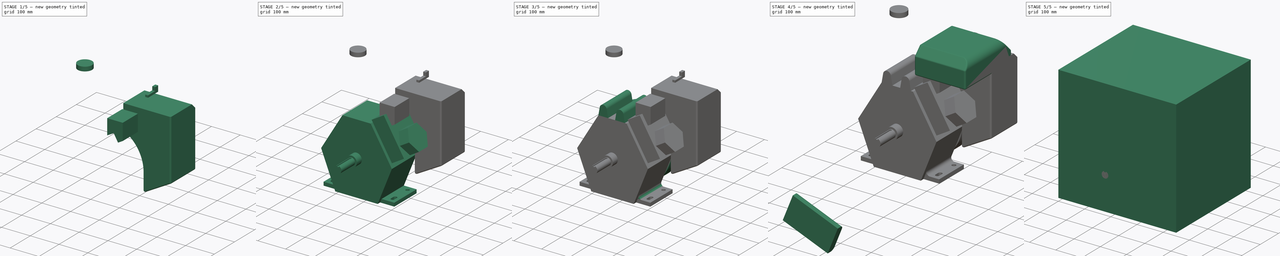
[diagram: build sequence overview — one tinted view per stage of 5, left to right]
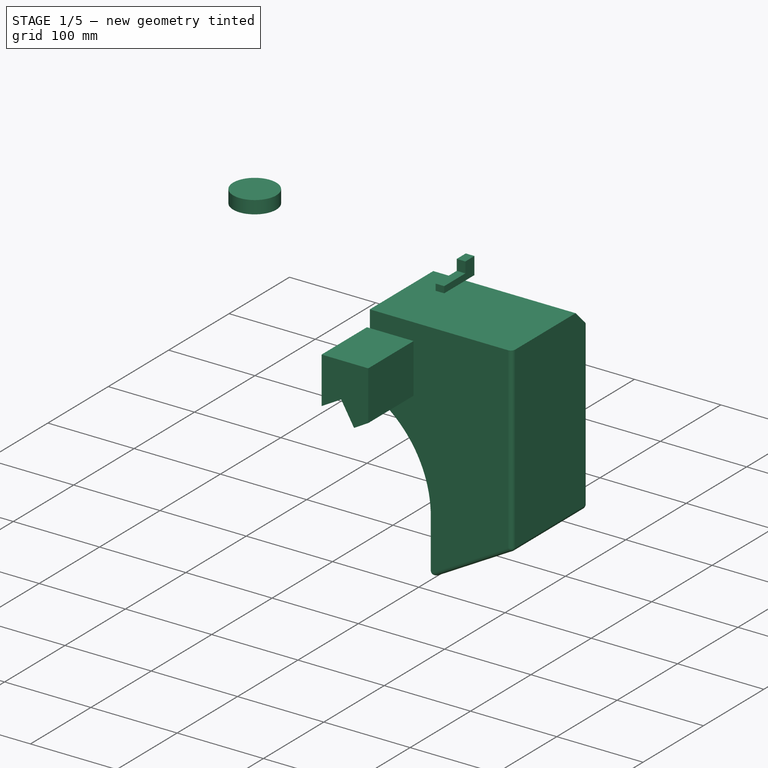
[diagram: stage 1 of 5 — iso view after this stage's code; geometry added in this stage tinted green]
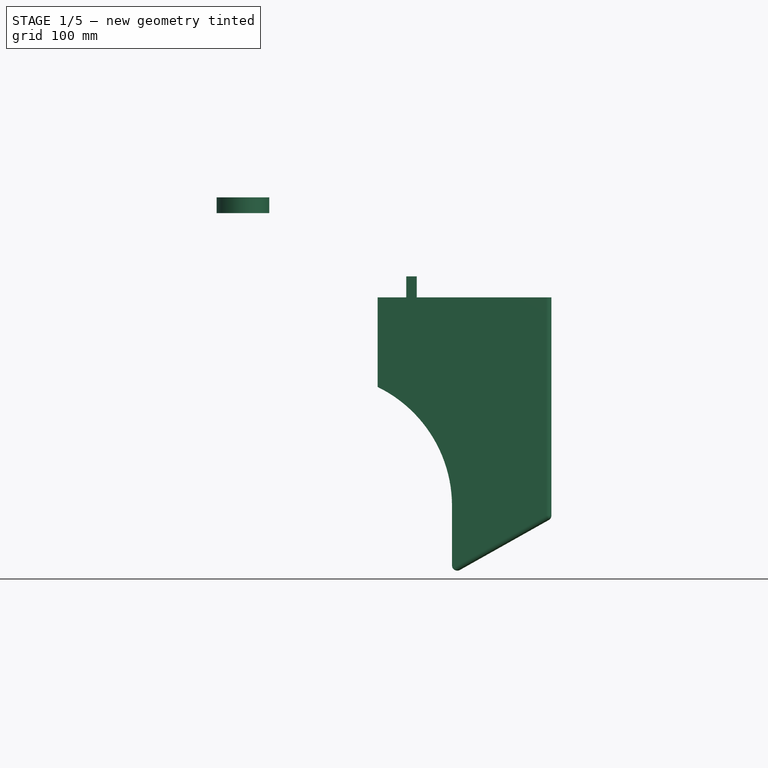
[diagram: stage 1 of 5 — front view after this stage's code; geometry added in this stage tinted green]
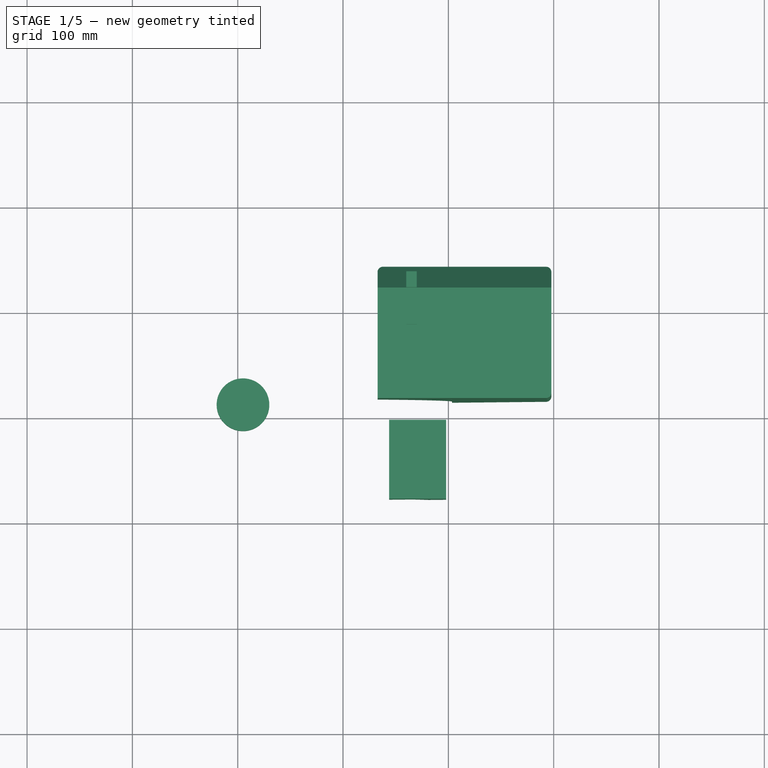
[diagram: stage 1 of 5 — top view after this stage's code; geometry added in this stage tinted green]
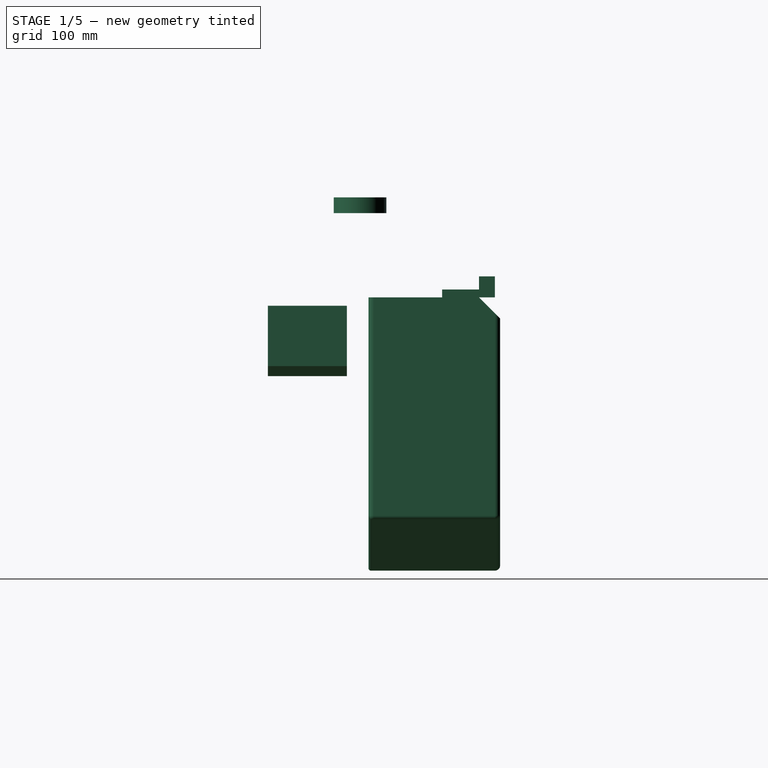
[diagram: stage 1 of 5 — right view after this stage's code; geometry added in this stage tinted green]
FCSTD DOCUMENT  (FreeCAD 0.16R6706 (Git))
Label: xp16hp
License: All rights reserved
LicenseURL: http://en.wikipedia.org/wiki/All_rights_reserved
objects: Sketcher::SketchObject×18, PartDesign::Pad×14, PartDesign::Fillet×8, PartDesign::Chamfer×4, PartDesign::Pocket×3, Part::Box×1, PartDesign::Revolution×1, Part::MultiFuse×1
note: 68 computed .brp shape members not serialized (recipe doc carries the construction recipe); baked Part::Feature solids carry a one-line shape summary decoded from their .brp

FEATURE [Sketcher::SketchObject] Sketch014
  Placement = pos=(0,215,0) rot=(1,0,0;1.5708rad)
  sketch-geometry (6):
    g0: LineSegment StartX=397.8 StartY=325 StartZ=0 EndX=232.8 EndY=325 EndZ=0
    g1: LineSegment StartX=397.8 StartY=325 StartZ=0 EndX=397.8 EndY=115 EndZ=0
    g2: LineSegment StartX=397.8 StartY=115 StartZ=0 EndX=303.474 EndY=62 EndZ=0
    g3: LineSegment StartX=303.474 StartY=62 StartZ=0 EndX=303.474 EndY=127 EndZ=0
    g4: LineSegment StartX=232.8 StartY=325 StartZ=0 EndX=232.8 EndY=240 EndZ=0
    g5: ArcOfCircle CenterX=177.8 CenterY=127 CenterZ=0 NormalX=0 NormalY=0 NormalZ=1 Radius=125.674 StartAngle=6.28319 EndAngle=7.40101
  constraints (19):
    c: Horizontal(g0)
    c: Vertical(g1)
    c: Coincident(g1,g2)
    c: Coincident(g2,g3)
    c: Vertical(g3)
    c: Vertical(g4)
    c: Coincident(g0,g4)
    c: Coincident(g3,g5)
    c: Coincident(g4,g5)
    c: Distance(g1) = 210
    c: Distance(g4) = 85
    c: Tangent(g5,g3)
    c: Coincident(g0,g1)
    c: DistanceX(g-1,g0) = 232.8
    c: DistanceY(g-1,g0) = 325
    c: DistanceX(g5) = 177.8
    c: DistanceY(g5) = 127
    c: Distance(g0) = 165
    c: Distance(g3) = 65
FEATURE [PartDesign::Pad] Pad010  label="Air Filter"
  Length = 125
  Length2 = 100
  Placement = pos=(0,215,0) rot=(1,0,0;1.5708rad)
  Reversed = true
  Sketch = -> Sketch014
  Type = 0
FEATURE [PartDesign::Chamfer] Chamfer003
  Base = -> Pad010 [Edge4]
  Placement = pos=(0,215,0) rot=(1,0,0;1.5708rad)
  Size = 20
FEATURE [PartDesign::Fillet] Fillet007  label="Air Filter with Fillets"
  Base = -> Chamfer003 [Edge7,Edge8,Edge19,Edge18,Edge17,Edge15,Edge6,Edge14,Edge20]
  Placement = pos=(0,215,0) rot=(1,0,0;1.5708rad)
  Radius = 5
FEATURE [Sketcher::SketchObject] Sketch016
  Placement = pos=(0,157,0) rot=(-1,0,0;4.71239rad)
  sketch-geometry (6):
    g0: LineSegment StartX=243.774 StartY=263.019 StartZ=0 EndX=266.447 EndY=276.109 EndZ=0
    g1: LineSegment StartX=266.447 StartY=276.109 StartZ=0 EndX=281.381 EndY=250.244 EndZ=0
    g2: LineSegment StartX=281.381 StartY=250.244 StartZ=0 EndX=297.844 EndY=259.75 EndZ=0
    g3: LineSegment StartX=297.844 StartY=259.75 StartZ=0 EndX=297.844 EndY=317.038 EndZ=0
    g4: LineSegment StartX=297.844 StartY=317.038 StartZ=0 EndX=243.774 EndY=317.038 EndZ=0
    g5: LineSegment StartX=243.774 StartY=317.038 StartZ=0 EndX=243.774 EndY=263.019 EndZ=0
  constraints (18):
    c: Coincident(g0,g1)
    c: Coincident(g1,g2)
    c: Coincident(g2,g3)
    c: Vertical(g3)
    c: Coincident(g3,g4)
    c: Horizontal(g4)
    c: Coincident(g4,g5)
    c: Coincident(g5,g0)
    c: Vertical(g5)
    c: Perpendicular(g0,g1)
    c: Perpendicular(g1,g2)
    c: DistanceX(g0) = 243.774
    c: DistanceY(g0) = 263.019
    c: DistanceX(g1) = 281.381
    c: DistanceY(g1) = 250.244
    c: DistanceX(g3) = 297.844
    c: DistanceY(g3) = 317.038
    c: Angle(g0,g5) = 1.0472
FEATURE [PartDesign::Pad] Pad011  label="Muffler"
  Length = 75
  Length2 = 100
  Midplane = true
  Placement = pos=(0,157,0) rot=(-1,0,0;4.71239rad)
  Sketch = -> Sketch016
  Type = 0
FEATURE [Sketcher::SketchObject] Sketch017
  Placement = pos=(0,0,405) rot=(0,0,1;0rad)
  sketch-geometry (1):
    g0: Circle CenterX=105 CenterY=207 CenterZ=0 NormalX=0 NormalY=0 NormalZ=1 Radius=25
  constraints (3):
    c: DistanceX(g0) = 105
    c: DistanceY(g0) = 207
    c: Radius(g0) = 25
FEATURE [PartDesign::Pad] Pad012  label="Gas Cap"
  Length = 15
  Length2 = 100
  Placement = pos=(0,0,405) rot=(0,0,1;0rad)
  Sketch = -> Sketch017
  Type = 0
FEATURE [Sketcher::SketchObject] Sketch018
  Placement = pos=(265,0,0) rot=(0.57735,0.57735,0.57735;2.0944rad)
  sketch-geometry (6):
    g0: LineSegment StartX=285 StartY=332.5 StartZ=0 EndX=320 EndY=332.5 EndZ=0
    g1: LineSegment StartX=320 StartY=332.5 StartZ=0 EndX=320 EndY=345 EndZ=0
    g2: LineSegment StartX=320 StartY=345 StartZ=0 EndX=335 EndY=345 EndZ=0
    g3: LineSegment StartX=335 StartY=345 StartZ=0 EndX=335 EndY=325 EndZ=0
    g4: LineSegment StartX=335 StartY=325 StartZ=0 EndX=285 EndY=325 EndZ=0
    g5: LineSegment StartX=285 StartY=325 StartZ=0 EndX=285 EndY=332.5 EndZ=0
  constraints (18):
    c: Horizontal(g0)
    c: Coincident(g0,g1)
    c: Coincident(g1,g2)
    c: Horizontal(g2)
    c: Coincident(g2,g3)
    c: Vertical(g3)
    c: Coincident(g3,g4)
    c: Horizontal(g4)
    c: Coincident(g4,g5)
    c: Coincident(g5,g0)
    c: Vertical(g5)
    c: Vertical(g1)
    c: Distance(g2) = 15
    c: Distance(g3) = 20
    c: DistanceX(g3) = 335
    c: DistanceY(g3) = 325
    c: Distance(g4) = 50
    c: Distance(g1) = 12.5
FEATURE [PartDesign::Pad] Pad013  label="Throttle Lever"
  Length = 10
  Length2 = 100
  Midplane = true
  Placement = pos=(265,0,0) rot=(0.57735,0.57735,0.57735;2.0944rad)
  Sketch = -> Sketch018
  Type = 0
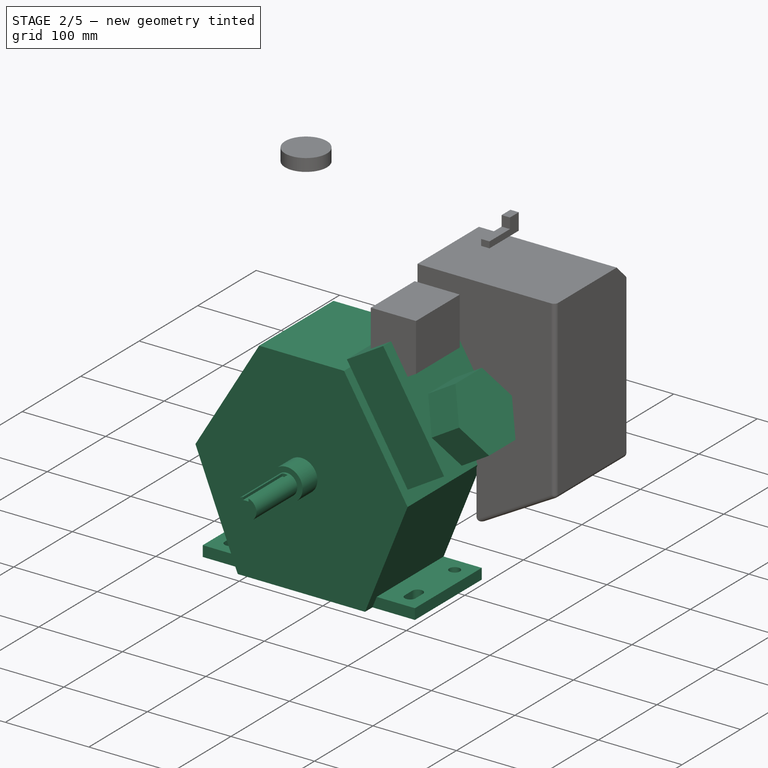
[diagram: stage 2 of 5 — iso view after this stage's code; geometry added in this stage tinted green]
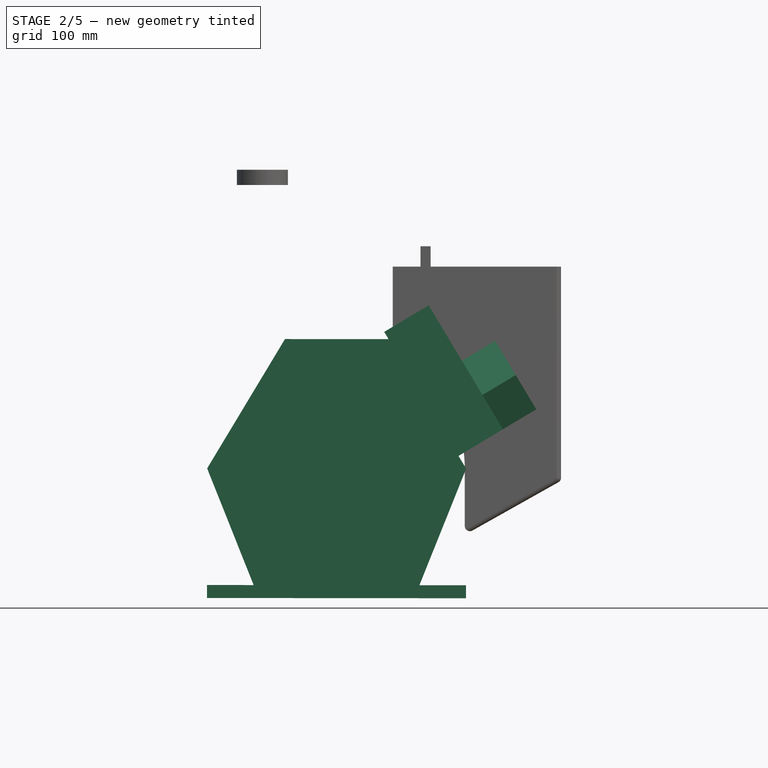
[diagram: stage 2 of 5 — front view after this stage's code; geometry added in this stage tinted green]
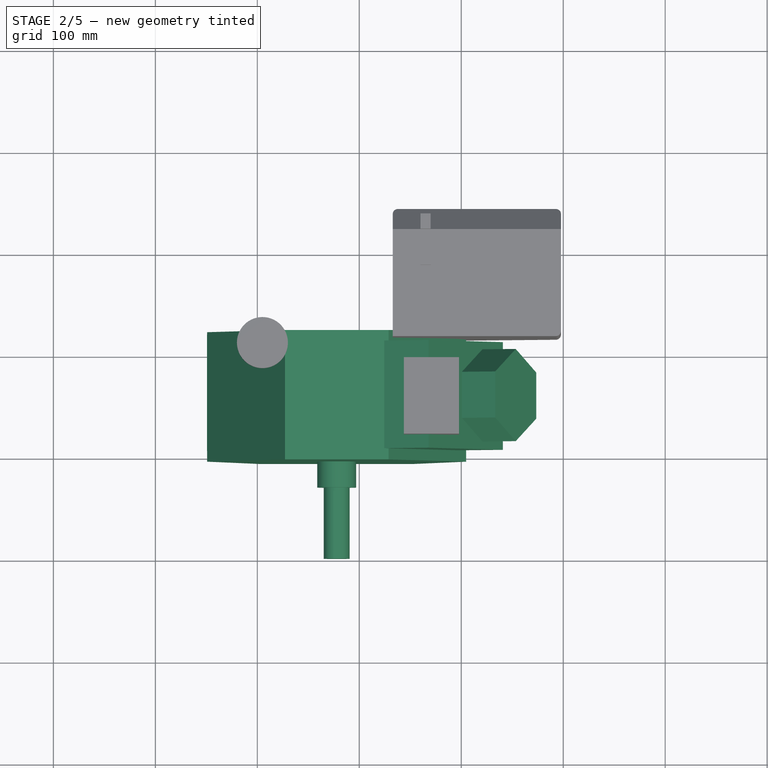
[diagram: stage 2 of 5 — top view after this stage's code; geometry added in this stage tinted green]
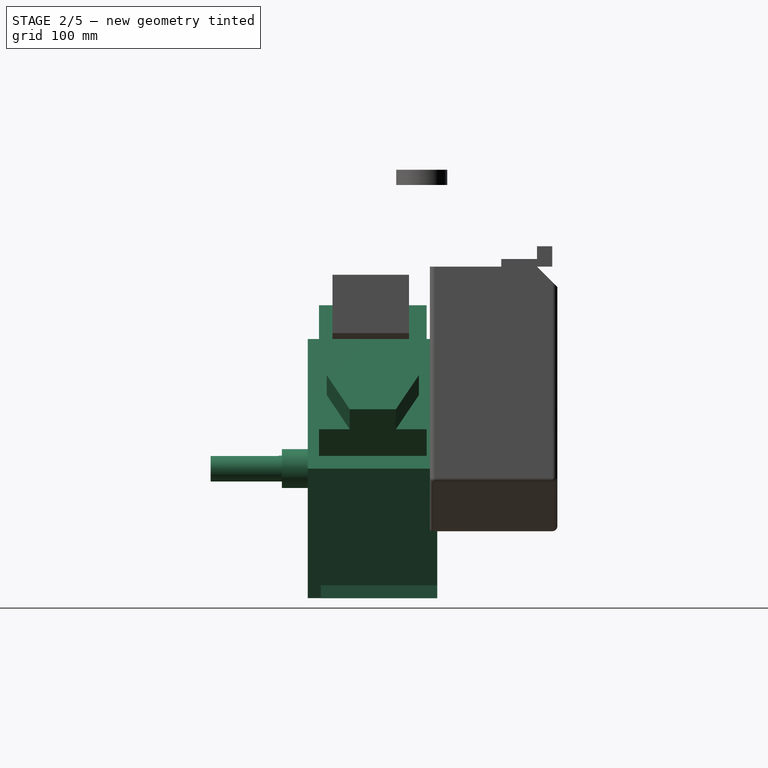
[diagram: stage 2 of 5 — right view after this stage's code; geometry added in this stage tinted green]
FEATURE [Sketcher::SketchObject] Sketch
  Placement = pos=(177.8,0,0) rot=(0.57735,0.57735,0.57735;2.0944rad)
  sketch-geometry (7):
    g0: LineSegment [constr] StartX=0 StartY=127 StartZ=0 EndX=500 EndY=127 EndZ=0
    g1: LineSegment StartX=0 StartY=127 StartZ=0 EndX=0 EndY=114.3 EndZ=0
    g2: LineSegment StartX=0 StartY=114.3 StartZ=0 EndX=69.85 EndY=114.3 EndZ=0
    g3: LineSegment StartX=0 StartY=127 StartZ=0 EndX=95.25 EndY=127 EndZ=0
    g4: LineSegment StartX=69.85 StartY=114.3 StartZ=0 EndX=69.85 EndY=107.95 EndZ=0
    g5: LineSegment StartX=69.85 StartY=107.95 StartZ=0 EndX=95.25 EndY=107.95 EndZ=0
    g6: LineSegment StartX=95.25 StartY=107.95 StartZ=0 EndX=95.25 EndY=127 EndZ=0
  constraints (23):
    c: Horizontal(g0)
    c: PointOnObject(g0,g-2)
    c: DistanceY(g-1,g0) = 127
    c: Coincident(g1,g0)
    c: PointOnObject(g1,g-2)
    c: Coincident(g1,g2)
    c: Horizontal(g2)
    c: PointOnObject(g3,g0)
    c: Coincident(g3,g0)
    c: Horizontal(g3)
    c: DistanceY(g1,g0) = 12.7
    c: DistanceX(g2,g2) = 69.85
    c: Coincident(g4,g2)
    c: Vertical(g4)
    c: Coincident(g5,g4)
    c: Horizontal(g5)
    c: Coincident(g6,g5)
    c: PointOnObject(g6,g0)
    c: Vertical(g6)
    c: Coincident(g6,g3)
    c: DistanceY(g4,g4) = 6.35
    c: DistanceX(g5,g5) = 25.4
    c: DistanceX(g0,g0) = 500
FEATURE [PartDesign::Revolution] Revolution  label="Output Shaft Revolve"
  Angle = 360
  Axis = (0,500,0)
  Base = (177.8,0,127)
  Placement = pos=(177.8,0,0) rot=(0.57735,0.57735,0.57735;2.0944rad)
  ReferenceAxis = -> Sketch [Axis0]
  Reversed = true
  Sketch = -> Sketch
FEATURE [Sketcher::SketchObject] Sketch001
  ExternalGeometry = -> [Revolution]
  Placement = pos=(177.8,0,0) rot=(0.57735,0.57735,-0.57735;2.0944rad)
  Support = -> Revolution [Face1]
  sketch-geometry (4):
    g0: LineSegment StartX=-139.7 StartY=3.175 StartZ=0 EndX=-139.7 EndY=-3.175 EndZ=0
    g1: LineSegment StartX=-139.7 StartY=-3.175 StartZ=0 EndX=-136.093 EndY=-3.175 EndZ=0
    g2: LineSegment StartX=-136.093 StartY=-3.175 StartZ=0 EndX=-136.093 EndY=3.175 EndZ=0
    g3: LineSegment StartX=-136.093 StartY=3.175 StartZ=0 EndX=-139.7 EndY=3.175 EndZ=0
  constraints (12):
    c: Vertical(g0)
    c: Tangent(g0,g-3)
    c: Coincident(g1,g0)
    c: Horizontal(g1)
    c: Coincident(g2,g1)
    c: Vertical(g2)
    c: Coincident(g3,g2)
    c: Coincident(g3,g0)
    c: Horizontal(g3)
    c: Symmetric(g0,g0,g-1)
    c: DistanceY(g2,g2) = 6.35
    c: DistanceX(g3,g3) = 3.6068
FEATURE [PartDesign::Pocket] Pocket  label="Output Shaft with Keyway"
  Length = 66.675
  Placement = pos=(177.8,0,0) rot=(0.57735,0.57735,0.57735;2.0944rad)
  Sketch = -> Sketch001
  Type = 0
  UpToFace = -> Revolution [Face1]
FEATURE [Sketcher::SketchObject] Sketch002
  ExternalGeometry = -> [Pocket]
  Placement = pos=(177.8,95.25,0) rot=(0.57735,0.57735,0.57735;4.18879rad)
  Support = -> Pocket [Face9]
  sketch-geometry (8):
    g0: LineSegment StartX=0 StartY=-76.3278 StartZ=0 EndX=-0.153298 EndY=76.0721 EndZ=0
    g1: LineSegment StartX=-0.153298 StartY=76.0721 StartZ=0 EndX=126.872 EndY=127 EndZ=0
    g2: LineSegment StartX=126.872 StartY=127 StartZ=0 EndX=253.872 EndY=50.9276 EndZ=0
    g3: LineSegment StartX=253.872 StartY=50.9276 StartZ=0 EndX=253.974 EndY=-50.6723 EndZ=0
    g4: LineSegment StartX=253.974 StartY=-50.6723 StartZ=0 EndX=127.128 EndY=-127 EndZ=0
    g5: LineSegment StartX=127.128 StartY=-127 StartZ=0 EndX=0 EndY=-76.3278 EndZ=0
    g6: LineSegment [constr] StartX=253.923 StartY=0.127671 StartZ=0 EndX=-0.076649 EndY=-0.127825 EndZ=0
    g7: LineSegment [constr] StartX=127.128 StartY=-127 StartZ=0 EndX=126.872 EndY=127 EndZ=0
  constraints (20):
    c: Coincident(g0,g1)
    c: Coincident(g1,g2)
    c: Coincident(g2,g3)
    c: Coincident(g3,g4)
    c: Coincident(g4,g5)
    c: Coincident(g5,g0)
    c: PointOnObject(g6,g3)
    c: PointOnObject(g6,g0)
    c: Symmetric(g3,g2,g6)
    c: Symmetric(g0,g0,g6)
    c: Symmetric(g1,g4,g6)
    c: PointOnObject(g-3,g6)
    c: PointOnObject(g-3,g7)
    c: Coincident(g7,g4)
    c: Coincident(g1,g7)
    c: Distance(g3) = 101.6
    c: Distance(g6) = 254
    c: Distance(g7) = 254
    c: Distance(g0) = 152.4
    c: PointOnObject(g0,g-2)
FEATURE [PartDesign::Pad] Pad  label="Crankcase"
  Length = 127
  Length2 = 100
  Placement = pos=(177.8,0,0) rot=(0.57735,0.57735,0.57735;2.0944rad)
  Sketch = -> Sketch002
  Type = 0
FEATURE [Sketcher::SketchObject] Sketch003
  ExternalGeometry = -> [Pad]
  Placement = pos=(327.194,0,89.4862) rot=(0.442199,0.442199,0.780334;1.81632rad)
  Support = -> Pad [Face14]
  sketch-geometry (4):
    g0: LineSegment StartX=106.203 StartY=58.1855 StartZ=0 EndX=211.822 EndY=58.1855 EndZ=0
    g1: LineSegment StartX=211.822 StartY=58.1855 StartZ=0 EndX=211.822 EndY=199.938 EndZ=0
    g2: LineSegment StartX=211.822 StartY=199.938 StartZ=0 EndX=106.203 EndY=199.938 EndZ=0
    g3: LineSegment StartX=106.203 StartY=199.938 StartZ=0 EndX=106.203 EndY=58.1855 EndZ=0
  constraints (8):
    c: Coincident(g0,g1)
    c: Coincident(g1,g2)
    c: Coincident(g2,g3)
    c: Coincident(g3,g0)
    c: Horizontal(g0)
    c: Horizontal(g2)
    c: Vertical(g1)
    c: Vertical(g3)
FEATURE [PartDesign::Pad] Pad001  label="Cylinder Head"
  Length = 50.8
  Length2 = 100
  Placement = pos=(177.8,0,0) rot=(0.57735,0.57735,0.57735;2.0944rad)
  Sketch = -> Sketch003
  Type = 0
FEATURE [Sketcher::SketchObject] Sketch004
  ExternalGeometry = -> [Pad001]
  Placement = pos=(370.774,0,115.59) rot=(0.442199,0.442199,0.780334;1.81632rad)
  Support = -> Pad001 [Face22]
  sketch-geometry (8):
    g0: LineSegment StartX=136.407 StartY=136.494 StartZ=0 EndX=113.801 EndY=97.3398 EndZ=0
    g1: LineSegment StartX=113.801 StartY=97.3398 StartZ=0 EndX=136.407 EndY=58.1855 EndZ=0
    g2: LineSegment StartX=136.407 StartY=58.1855 StartZ=0 EndX=181.618 EndY=58.1855 EndZ=0
    g3: LineSegment StartX=181.618 StartY=58.1855 StartZ=0 EndX=204.224 EndY=97.3398 EndZ=0
    g4: LineSegment StartX=204.224 StartY=97.3398 StartZ=0 EndX=181.618 EndY=136.494 EndZ=0
    g5: LineSegment StartX=181.618 StartY=136.494 StartZ=0 EndX=136.407 EndY=136.494 EndZ=0
    g6: Circle [constr] CenterX=159.013 CenterY=97.3398 CenterZ=0 NormalX=0 NormalY=0 NormalZ=1 Radius=45.2115
    g7: LineSegment [constr] StartX=159.013 StartY=97.3398 StartZ=0 EndX=159.013 EndY=58.1855 EndZ=0
  constraints (19):
    c: Coincident(g0,g1)
    c: Coincident(g1,g2)
    c: Coincident(g2,g3)
    c: Coincident(g3,g4)
    c: Coincident(g4,g5)
    c: Coincident(g5,g0)
    c: Equal(g0, g1-g5) x5
    c: PointOnObject(g0,g6)
    c: PointOnObject(g1,g6)
    c: PointOnObject(g2,g6)
    c: PointOnObject(g3,g6)
    c: PointOnObject(g4,g6)
    c: PointOnObject(g5,g6)
    c: Parallel(g2,g-6)
    c: PointOnObject(g2,g-6)
    c: Coincident(g7,g6)
    c: PointOnObject(g7,g-6)
    c: Vertical(g7)
    c: Symmetric(g-6,g-6,g7)
FEATURE [PartDesign::Pad] Pad002  label="Cylinder Head Cap"
  Length = 38.1
  Length2 = 100
  Placement = pos=(177.8,0,0) rot=(0.57735,0.57735,0.57735;2.0944rad)
  Sketch = -> Sketch004
  Type = 0
FEATURE [Sketcher::SketchObject] Sketch005
  ExternalGeometry = -> [Pad002]
  Placement = pos=(177.8,0,-0.0767775) rot=(0.707107,0.707107,-0.000356;3.1423rad)
  Support = -> Pad002 [Face10]
  sketch-geometry (5):
    g0: LineSegment StartX=107.95 StartY=126.872 StartZ=0 EndX=222.25 EndY=126.872 EndZ=0
    g1: LineSegment StartX=222.25 StartY=126.872 StartZ=0 EndX=222.25 EndY=-127.128 EndZ=0
    g2: LineSegment StartX=222.25 StartY=-127.128 StartZ=0 EndX=107.95 EndY=-127.128 EndZ=0
    g3: LineSegment StartX=107.95 StartY=-127.128 StartZ=0 EndX=107.95 EndY=126.872 EndZ=0
    g4: LineSegment [constr] StartX=222.25 StartY=-0.127748 StartZ=0 EndX=95.25 EndY=-0.127748 EndZ=0
  constraints (16):
    c: Coincident(g0,g1)
    c: Coincident(g1,g2)
    c: Coincident(g2,g3)
    c: Coincident(g3,g0)
    c: Horizontal(g0)
    c: Horizontal(g2)
    c: Vertical(g1)
    c: Vertical(g3)
    c: PointOnObject(g1,g-3)
    c: DistanceX(g-5,g0) = 12.7
    c: PointOnObject(g4,g-3)
    c: PointOnObject(g4,g-5)
    c: Horizontal(g4)
    c: Symmetric(g-6,g-4,g4)
    c: Symmetric(g0,g1,g4)
    c: DistanceY(g-4,g0) = 50.8
FEATURE [PartDesign::Pad] Pad003  label="Mounting Base Flange"
  Length = 12.7
  Length2 = 100
  Placement = pos=(177.8,0,0) rot=(0.57735,0.57735,0.57735;2.0944rad)
  Reversed = true
  Sketch = -> Sketch005
  Type = 0
FEATURE [Sketcher::SketchObject] Sketch006
  ExternalGeometry = -> [Pad003]
  Placement = pos=(177.8,0,-0.0767775) rot=(0.707107,0.707107,-0.000356;3.1423rad)
  Support = -> Pad003 [Face26]
  sketch-geometry (12):
    g0: Circle CenterX=203.2 CenterY=107.822 CenterZ=0 NormalX=0 NormalY=0 NormalZ=1 Radius=6.35
    g1: LineSegment [constr] StartX=165.1 StartY=126.872 StartZ=0 EndX=165.1 EndY=-127.128 EndZ=0
    g2: LineSegment [constr] StartX=319.085 StartY=0 StartZ=0 EndX=0 EndY=0 EndZ=0
    g3: Circle CenterX=203.2 CenterY=-107.822 CenterZ=0 NormalX=0 NormalY=0 NormalZ=1 Radius=6.35
    g4: ArcOfCircle CenterX=139.7 CenterY=107.822 CenterZ=0 NormalX=0 NormalY=0 NormalZ=1 Radius=6.35 StartAngle=4.71239 EndAngle=7.85398
    g5: ArcOfCircle CenterX=127 CenterY=107.822 CenterZ=0 NormalX=0 NormalY=0 NormalZ=1 Radius=6.35 StartAngle=1.5708 EndAngle=4.71239
    g6: LineSegment StartX=139.7 StartY=114.172 StartZ=0 EndX=127 EndY=114.172 EndZ=0
    g7: LineSegment StartX=139.7 StartY=101.472 StartZ=0 EndX=127 EndY=101.472 EndZ=0
    g8: ArcOfCircle CenterX=139.7 CenterY=-107.822 CenterZ=0 NormalX=0 NormalY=0 NormalZ=1 Radius=6.35 StartAngle=4.71239 EndAngle=7.85398
    g9: ArcOfCircle CenterX=127 CenterY=-107.822 CenterZ=0 NormalX=0 NormalY=0 NormalZ=1 Radius=6.35 StartAngle=1.5708 EndAngle=4.71239
    g10: LineSegment StartX=139.7 StartY=-101.472 StartZ=0 EndX=127 EndY=-101.472 EndZ=0
    g11: LineSegment StartX=139.7 StartY=-114.172 StartZ=0 EndX=127 EndY=-114.172 EndZ=0
  constraints (29):
    c: PointOnObject(g1,g-3)
    c: Vertical(g1)
    c: PointOnObject(g1,g-7)
    c: Symmetric(g-8,g-6,g1)
    c: Radius(g0) = 6.35
    c: Coincident(g2,g-1)
    c: Horizontal(g2)
    c: Symmetric(g3,g0,g2)
    c: Tangent(g4,g7) = 1.5708
    c: Tangent(g4,g6) = -1.5708
    c: Tangent(g6,g5) = -1.5708
    c: Tangent(g7,g5) = 1.5708
    c: Horizontal(g6)
    c: Equal(g4,g5)
    c: Tangent(g8,g11) = 1.5708
    c: Tangent(g8,g10) = -1.5708
    c: Tangent(g10,g9) = -1.5708
    c: Tangent(g11,g9) = 1.5708
    c: Horizontal(g10)
    c: Equal(g8,g9)
    c: Equal(g3,g9)
    c: Equal(g9,g5)
    c: Equal(g3,g0)
    c: Symmetric(g5,g9,g2)
    c: Symmetric(g9,g3,g1)
    c: DistanceY(g0,g-5) = 19.05
    c: DistanceX(g0,g-5) = 19.05
    c: Symmetric(g8,g4,g2)
    c: Distance(g8,g9) = 12.7
FEATURE [PartDesign::Pocket] Pocket001  label="Mounting Base Holes"
  Length = 25.4
  Placement = pos=(177.8,0,0) rot=(0.57735,0.57735,0.57735;2.0944rad)
  Sketch = -> Sketch006
  Type = 0
  UpToFace = -> Pad003 [Face18]
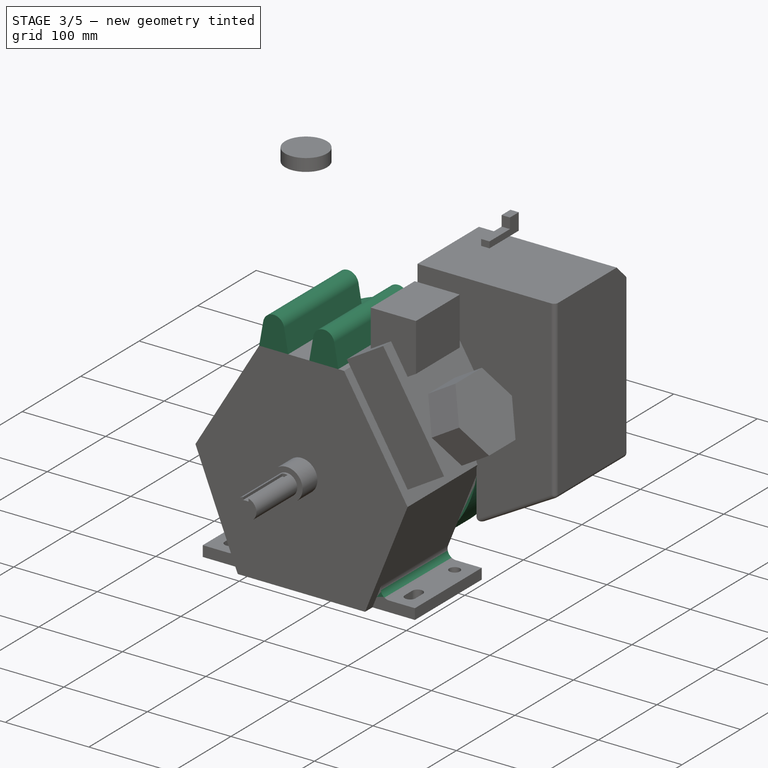
[diagram: stage 3 of 5 — iso view after this stage's code; geometry added in this stage tinted green]
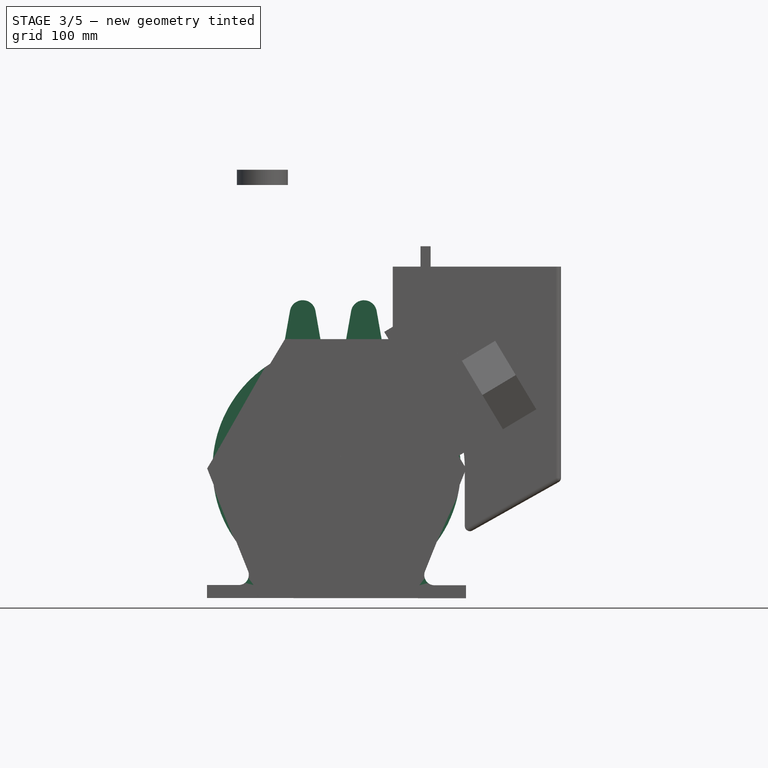
[diagram: stage 3 of 5 — front view after this stage's code; geometry added in this stage tinted green]
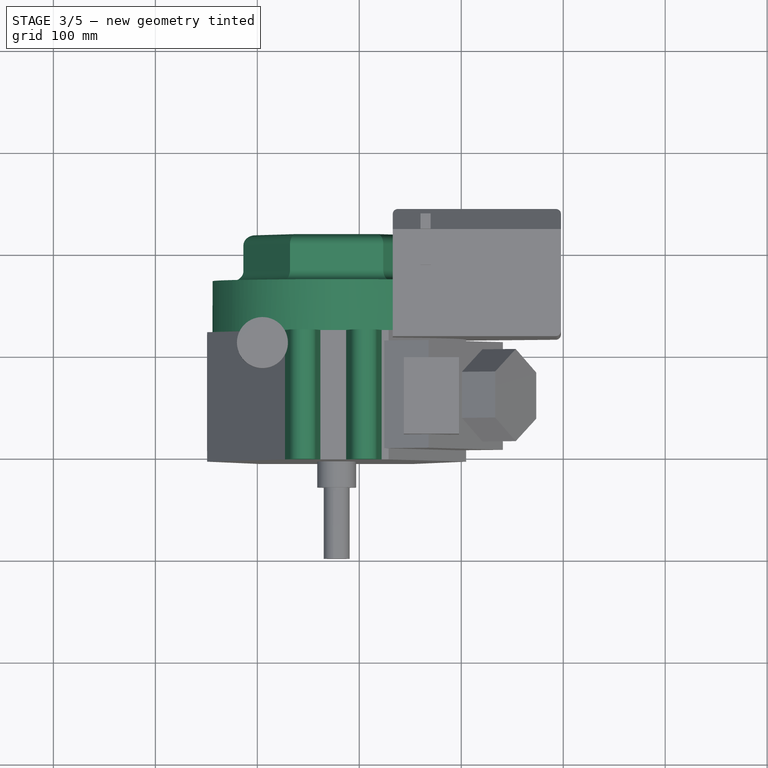
[diagram: stage 3 of 5 — top view after this stage's code; geometry added in this stage tinted green]
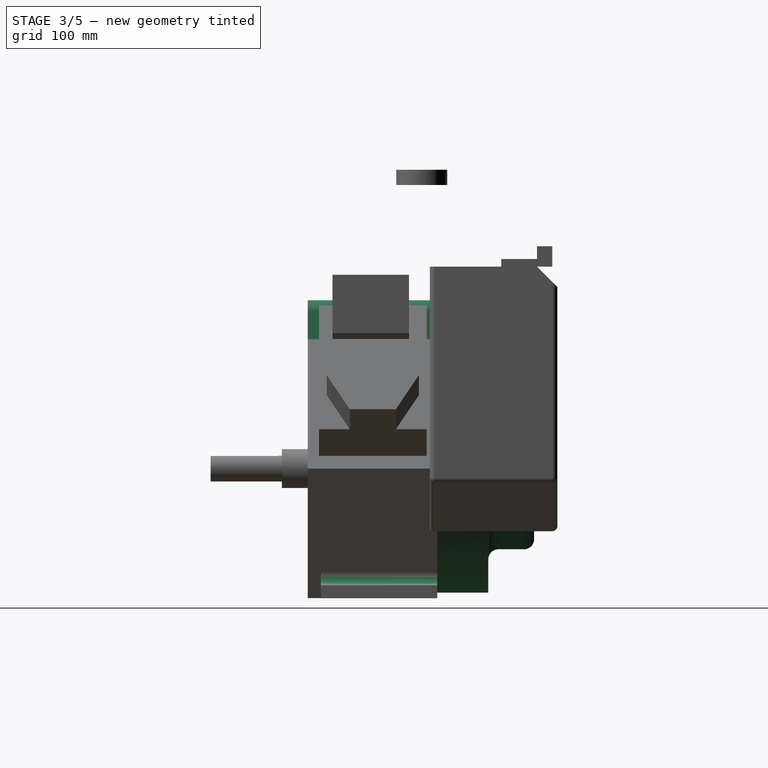
[diagram: stage 3 of 5 — right view after this stage's code; geometry added in this stage tinted green]
FEATURE [PartDesign::Fillet] Fillet
  Base = -> Pocket001 [Edge35,Edge30]
  Placement = pos=(177.8,0,0) rot=(0.57735,0.57735,0.57735;2.0944rad)
  Radius = 10
FEATURE [Sketcher::SketchObject] Sketch008
  ExternalGeometry = -> [Pad001]
  Placement = pos=(177.8,95.25,0) rot=(-0.57735,-0.57735,0.57735;4.18879rad)
  Support = -> Fillet [Face6]
  sketch-geometry (8):
    g0: LineSegment StartX=-253.974 StartY=-50.6723 StartZ=0 EndX=-306.992 EndY=-41.2688 EndZ=0
    g1: LineSegment StartX=-253.93 StartY=-6.95789 StartZ=0 EndX=-306.967 EndY=-16.2547 EndZ=0
    g2: LineSegment StartX=-253.914 StartY=9.32771 StartZ=0 EndX=-306.932 EndY=18.7312 EndZ=0
    g3: LineSegment StartX=-253.87 StartY=53.0421 StartZ=0 EndX=-306.907 EndY=43.7453 EndZ=0
    g4: LineSegment StartX=-253.914 StartY=9.32771 StartZ=0 EndX=-253.87 EndY=53.0421 EndZ=0
    g5: LineSegment StartX=-253.93 StartY=-6.95789 StartZ=0 EndX=-253.974 EndY=-50.6723 EndZ=0
    g6: ArcOfCircle CenterX=-304.774 CenterY=-28.764 CenterZ=0 NormalX=0 NormalY=0 NormalZ=1 Radius=12.7 StartAngle=1.74432 EndAngle=4.53685
    g7: ArcOfCircle CenterX=-304.714 CenterY=31.236 CenterZ=0 NormalX=0 NormalY=0 NormalZ=1 Radius=12.7 StartAngle=1.74432 EndAngle=4.53685
  constraints (25):
    c: Coincident(g4,g2)
    c: Coincident(g4,g3)
    c: Coincident(g5,g1)
    c: Coincident(g0,g5)
    c: PointOnObject(g2,g-3)
    c: PointOnObject(g3,g-3)
    c: PointOnObject(g1,g-3)
    c: Coincident(g-3,g0)
    c: Equal(g1,g0)
    c: Equal(g0,g2)
    c: Equal(g2,g3)
    c: Coincident(g6,g0)
    c: Coincident(g6,g1)
    c: Coincident(g7,g2)
    c: Coincident(g7,g3)
    c: Tangent(g7,g2)
    c: Tangent(g7,g3)
    c: Tangent(g1,g6)
    c: Tangent(g0,g6)
    c: Equal(g6,g7)
    c: Angle(g2,g-3) = 1.74533
    c: Angle(g-3,g1) = 1.74533
    c: DistanceY(g6,g7) = 60
    c: DistanceX(g6,g0) = 50.8
    c: Radius(g6) = 12.7
FEATURE [PartDesign::Pad] Pad005  label="Fuel Tank Mounting Points"
  Length = 127
  Length2 = 100
  Placement = pos=(177.8,0,0) rot=(0.57735,0.57735,0.57735;2.0944rad)
  Reversed = true
  Sketch = -> Sketch008
  Type = 0
FEATURE [Sketcher::SketchObject] Sketch012
  ExternalGeometry = -> [Pad005]
  Placement = pos=(177.8,222.25,0) rot=(0.57735,0.57735,0.57735;4.18879rad)
  Support = -> Pad005 [Face2]
  sketch-geometry (3):
    g0: LineSegment [constr] StartX=126.872 StartY=127 StartZ=0 EndX=127.128 EndY=-127 EndZ=0
    g1: LineSegment [constr] StartX=242.498 StartY=0 StartZ=0 EndX=127 EndY=0 EndZ=0
    g2: Circle CenterX=127 CenterY=0 CenterZ=0 NormalX=0 NormalY=0 NormalZ=1 Radius=121.715
  constraints (6):
    c: Coincident(g0,g-6)
    c: Coincident(g-4,g0)
    c: Horizontal(g1)
    c: PointOnObject(g1,g0)
    c: PointOnObject(g-1,g1)
    c: Coincident(g2,g1)
FEATURE [PartDesign::Pad] Pad008  label="Crank Case and Cover"
  Length = 50
  Length2 = 100
  Placement = pos=(177.8,0,0) rot=(0.57735,0.57735,0.57735;2.0944rad)
  Sketch = -> Sketch012
  Type = 0
FEATURE [Sketcher::SketchObject] Sketch013
  ExternalGeometry = -> [Pad008]
  Placement = pos=(177.8,272.25,0) rot=(0.57735,0.57735,0.57735;4.18879rad)
  Support = -> Pad008 [Face63]
  sketch-geometry (7):
    g0: LineSegment StartX=47.8073 StartY=45.7219 StartZ=0 EndX=47.8073 EndY=-45.7219 EndZ=0
    g1: LineSegment StartX=47.8073 StartY=-45.7219 StartZ=0 EndX=127 EndY=-91.4438 EndZ=0
    g2: LineSegment StartX=127 StartY=-91.4438 StartZ=0 EndX=206.193 EndY=-45.7219 EndZ=0
    g3: LineSegment StartX=206.193 StartY=-45.7219 StartZ=0 EndX=206.193 EndY=45.7219 EndZ=0
    g4: LineSegment StartX=206.193 StartY=45.7219 StartZ=0 EndX=127 EndY=91.4438 EndZ=0
    g5: LineSegment StartX=127 StartY=91.4438 StartZ=0 EndX=47.8073 EndY=45.7219 EndZ=0
    g6: Circle [constr] CenterX=127 CenterY=0 CenterZ=0 NormalX=0 NormalY=0 NormalZ=1 Radius=91.4438
  constraints (14):
    c: Coincident(g0,g1)
    c: Coincident(g1,g2)
    c: Coincident(g2,g3)
    c: Coincident(g3,g4)
    c: Coincident(g4,g5)
    c: Coincident(g5,g0)
    c: Equal(g0, g1-g5) x5
    c: PointOnObject(g0,g6)
    c: PointOnObject(g1,g6)
    c: PointOnObject(g2,g6)
    c: PointOnObject(g3,g6)
    c: PointOnObject(g4,g6)
    c: PointOnObject(g5,g6)
    c: Vertical(g3)
FEATURE [PartDesign::Pad] Pad009  label="Recoil Cover"
  Length = 45
  Length2 = 100
  Placement = pos=(177.8,0,0) rot=(0.57735,0.57735,0.57735;2.0944rad)
  Sketch = -> Sketch013
  Type = 0
FEATURE [PartDesign::Fillet] Fillet005
  Base = -> Pad009 [Edge197,Edge203,Edge193,Edge195,Edge199,Edge201]
  Placement = pos=(177.8,0,0) rot=(0.57735,0.57735,0.57735;2.0944rad)
  Radius = 10
FEATURE [PartDesign::Fillet] Fillet006  label="CrankCase"
  Base = -> Fillet005 [Edge7,Edge3,Edge15,Edge14,Edge13,Edge12]
  Placement = pos=(177.8,0,0) rot=(0.57735,0.57735,0.57735;2.0944rad)
  Radius = 10
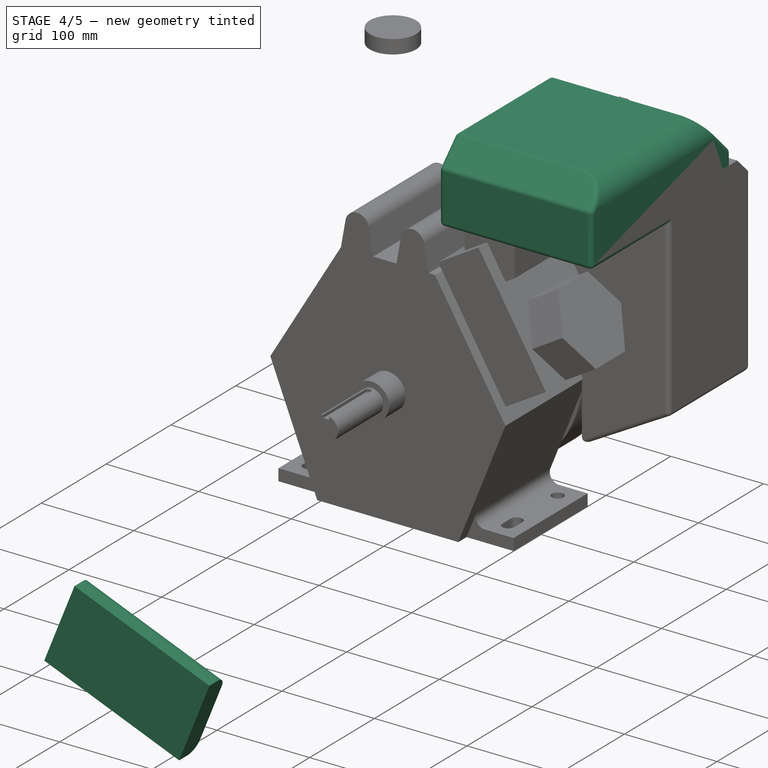
[diagram: stage 4 of 5 — iso view after this stage's code; geometry added in this stage tinted green]
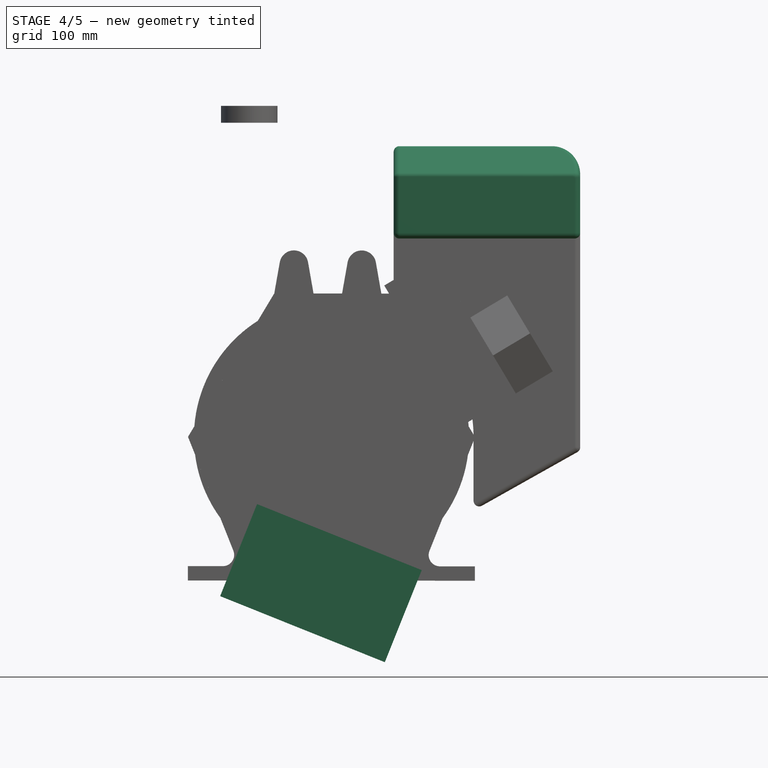
[diagram: stage 4 of 5 — front view after this stage's code; geometry added in this stage tinted green]
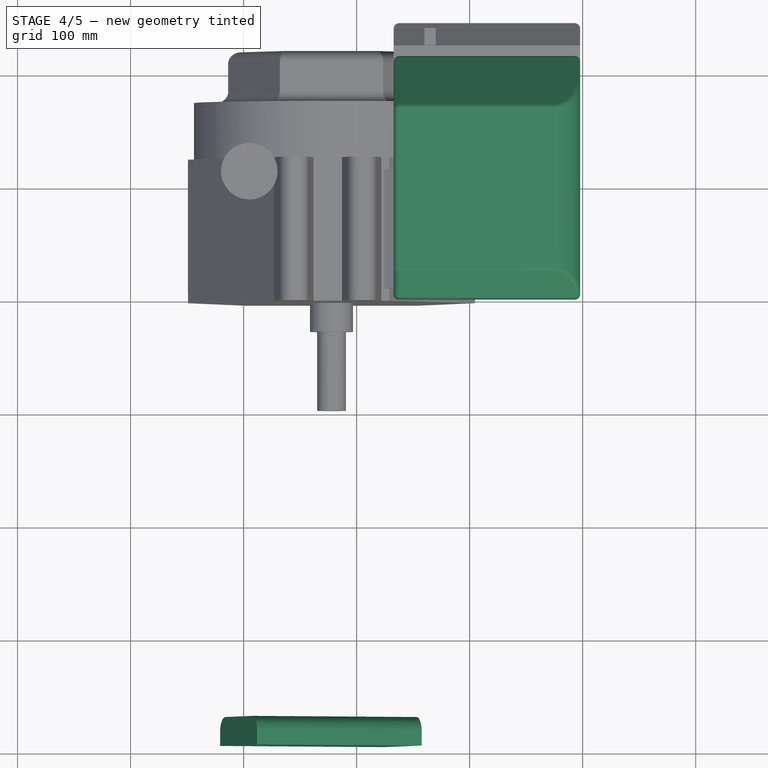
[diagram: stage 4 of 5 — top view after this stage's code; geometry added in this stage tinted green]
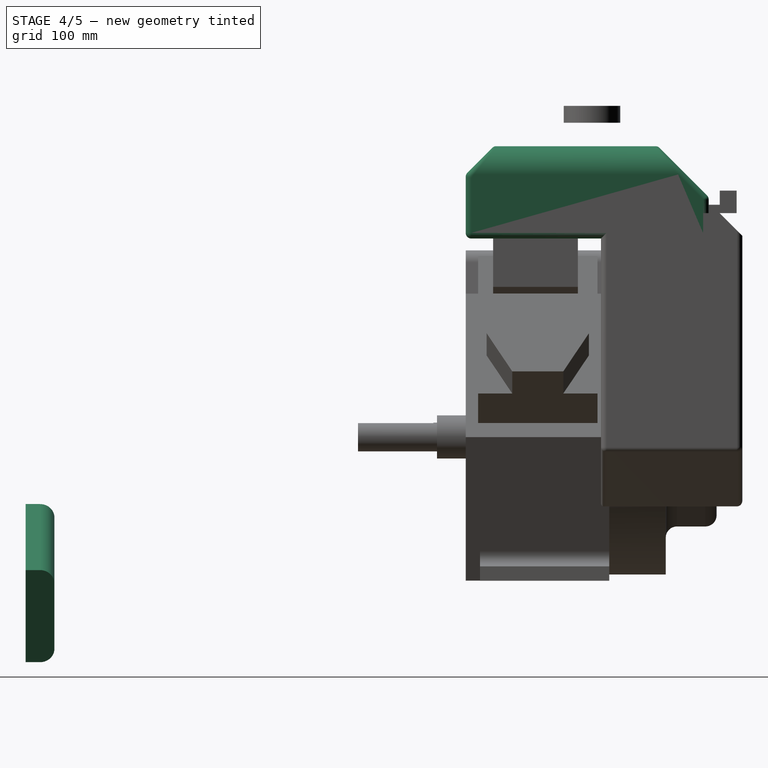
[diagram: stage 4 of 5 — right view after this stage's code; geometry added in this stage tinted green]
FEATURE [Sketcher::SketchObject] Sketch007
  Placement = pos=(177.8,95.25,0) rot=(0.57735,0.57735,-0.57735;2.0944rad)
  Support = -> Fillet [Face6]
  sketch-geometry (6):
    g0: LineSegment StartX=-294.09 StartY=38.2524 StartZ=0 EndX=-407.991 EndY=38.2524 EndZ=0
    g1: LineSegment StartX=-407.991 StartY=38.2524 StartZ=0 EndX=-407.991 EndY=-197.433 EndZ=0
    g2: LineSegment StartX=-407.991 StartY=-197.433 StartZ=0 EndX=-206.301 EndY=-197.433 EndZ=0
    g3: LineSegment StartX=-294.09 StartY=-49.5369 StartZ=0 EndX=-294.09 EndY=38.2524 EndZ=0
    g4: LineSegment StartX=-206.301 StartY=-118.085 StartZ=0 EndX=-206.301 EndY=-197.433 EndZ=0
    g5: LineSegment StartX=-294.09 StartY=-49.5369 StartZ=0 EndX=-206.301 EndY=-118.085 EndZ=0
  constraints (11):
    c: Coincident(g0,g1)
    c: Coincident(g1,g2)
    c: Horizontal(g0)
    c: Horizontal(g2)
    c: Vertical(g1)
    c: Coincident(g3,g0)
    c: Vertical(g3)
    c: Vertical(g4)
    c: Coincident(g4,g2)
    c: Coincident(g5,g3)
    c: Coincident(g5,g4)
FEATURE [PartDesign::Pad] Pad004  label="Fuel Tank Main Body"
  Length = 15
  Length2 = 175
  Placement = pos=(177.8,0,0) rot=(0.57735,0.57735,0.57735;2.0944rad)
  Reversed = true
  Sketch = -> Sketch007
  Type = 4
FEATURE [Sketcher::SketchObject] Sketch009
  ExternalGeometry = -> [Pad004]
  Placement = pos=(243.39,0,-26.2969) rot=(0.63789,0.63789,0.431501;2.32686rad)
  Support = -> Pad004 [Face8]
  sketch-geometry (6):
    g0: LineSegment StartX=-294.09 StartY=-49.5369 StartZ=0 EndX=-281.39 EndY=-49.5369 EndZ=0
    g1: LineSegment StartX=-268.69 StartY=-36.837 StartZ=0 EndX=-268.69 EndY=25.5524 EndZ=0
    g2: LineSegment StartX=-294.09 StartY=38.2524 StartZ=0 EndX=-281.39 EndY=38.2524 EndZ=0
    g3: ArcOfCircle CenterX=-281.39 CenterY=-36.8369 CenterZ=0 NormalX=0 NormalY=0 NormalZ=1 Radius=12.7 StartAngle=4.71239 EndAngle=6.28318
    g4: ArcOfCircle CenterX=-281.39 CenterY=25.5524 CenterZ=0 NormalX=0 NormalY=0 NormalZ=1 Radius=12.7 StartAngle=1.35191e-06 EndAngle=1.5708
    g5: LineSegment StartX=-294.09 StartY=-49.5369 StartZ=0 EndX=-294.09 EndY=38.2524 EndZ=0
  constraints (18):
    c: Coincident(g0,g-3)
    c: Vertical(g1)
    c: Coincident(g2,g-3)
    c: Coincident(g2,g4)
    c: Coincident(g1,g4)
    c: Coincident(g1,g3)
    c: Coincident(g0,g3)
    c: Tangent(g4,g1)
    c: Tangent(g2,g4)
    c: Tangent(g3,g1)
    c: Tangent(g0,g3)
    c: Equal(g3,g4)
    c: DistanceX(g2,g1) = 25.4
    c: Horizontal(g0)
    c: Radius(g3) = 12.7
    c: Coincident(g5,g0)
    c: Coincident(g2,g5)
    c: Horizontal(g2)
FEATURE [PartDesign::Pad] Pad006  label="Fuel Tank Mounting Tab"
  Length = 157
  Length2 = 100
  Placement = pos=(177.8,0,0) rot=(0.57735,0.57735,0.57735;2.0944rad)
  Reversed = true
  Sketch = -> Sketch009
  Type = 0
FEATURE [Sketcher::SketchObject] Sketch011
  Placement = pos=(177.8,95.25,0) rot=(-0.57735,-0.57735,0.57735;4.18879rad)
  Support = -> Pad005 [Face6]
  sketch-geometry (4):
    g0: LineSegment StartX=-384.278 StartY=55 StartZ=0 EndX=-302.556 EndY=55 EndZ=0
    g1: LineSegment StartX=-302.556 StartY=55 StartZ=0 EndX=-302.556 EndY=220 EndZ=0
    g2: LineSegment StartX=-384.278 StartY=220 StartZ=0 EndX=-384.278 EndY=55 EndZ=0
    g3: LineSegment StartX=-384.278 StartY=220 StartZ=0 EndX=-302.556 EndY=220 EndZ=0
  constraints (12):
    c: Coincident(g0,g1)
    c: Coincident(g2,g0)
    c: Horizontal(g0)
    c: Vertical(g1)
    c: Vertical(g2)
    c: Coincident(g3,g2)
    c: Horizontal(g3)
    c: Coincident(g3,g1)
    c: DistanceY(g2,g2) = 165
    c: DistanceX(g3,g3) = 81.7224
    c: DistanceX(g1,g-1) = 302.556
    c: DistanceY(g-1,g0) = 55
FEATURE [PartDesign::Pad] Pad007  label="Cylinder Head Cover"
  Length = 215
  Length2 = 100
  Placement = pos=(177.8,0,0) rot=(0.57735,0.57735,0.57735;2.0944rad)
  Reversed = true
  Sketch = -> Sketch011
  Type = 0
FEATURE [PartDesign::Chamfer] Chamfer001  label="Cylinder Head Cover Chamfer1"
  Base = -> Pad007 [Edge12]
  Placement = pos=(177.8,0,0) rot=(0.57735,0.57735,0.57735;2.0944rad)
  Size = 45
FEATURE [PartDesign::Chamfer] Chamfer002  label="Cylinder Head Cover Chamfer2"
  Base = -> Chamfer001 [Edge8]
  Placement = pos=(177.8,0,0) rot=(0.57735,0.57735,0.57735;2.0944rad)
  Size = 25
FEATURE [PartDesign::Fillet] Fillet003  label="Cylinder Head Cover Big Fillet"
  Base = -> Chamfer002 [Edge7]
  Placement = pos=(177.8,0,0) rot=(0.57735,0.57735,0.57735;2.0944rad)
  Radius = 25
FEATURE [PartDesign::Fillet] Fillet004  label="Cylinder Head Cover Fillets"
  Base = -> Fillet003 [Edge17,Edge7,Edge5,Edge1,Edge9,Edge14,Edge18,Edge15,Edge10,Edge12,Edge4,Edge3,Edge6,Edge11,Edge16,Edge19,Edge20,Edge13]
  Placement = pos=(177.8,0,0) rot=(0.57735,0.57735,0.57735;2.0944rad)
  Radius = 5
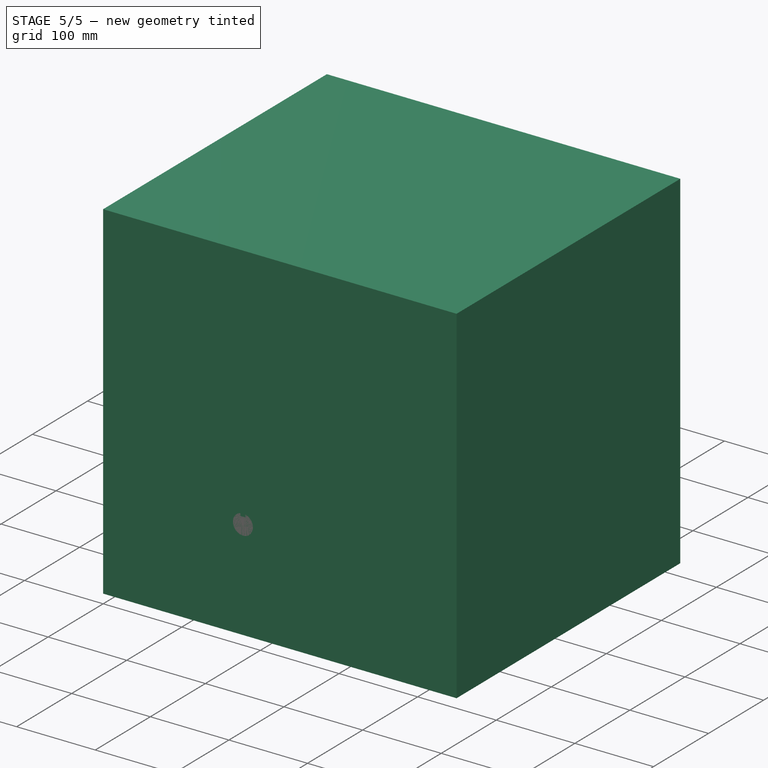
[diagram: stage 5 of 5 — iso view after this stage's code; geometry added in this stage tinted green]
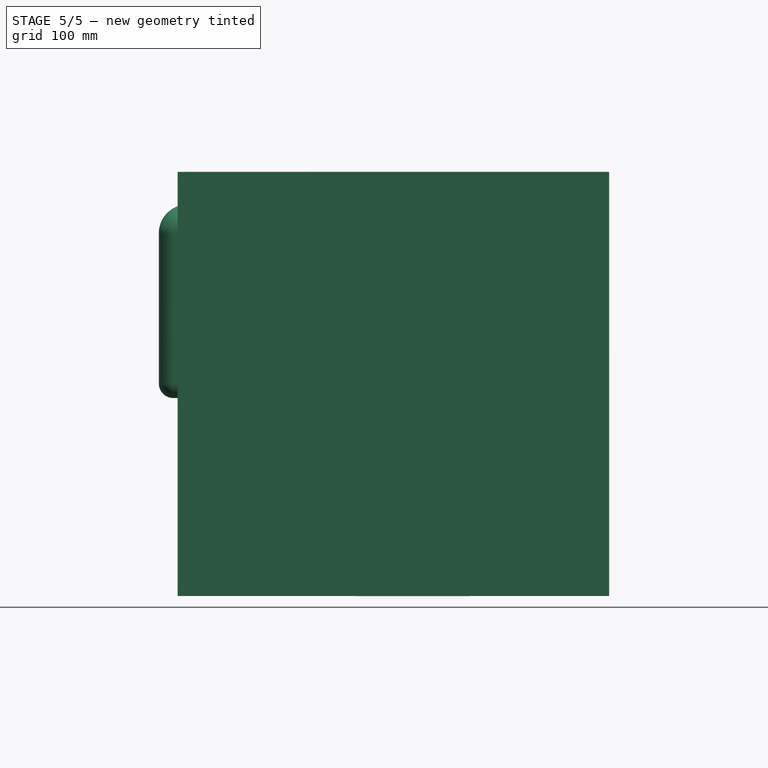
[diagram: stage 5 of 5 — front view after this stage's code; geometry added in this stage tinted green]
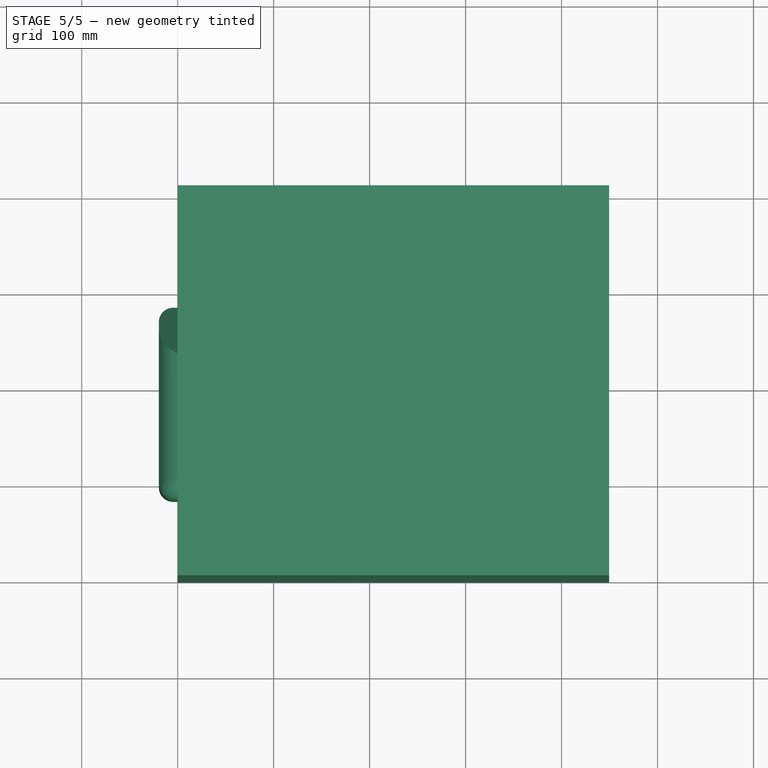
[diagram: stage 5 of 5 — top view after this stage's code; geometry added in this stage tinted green]
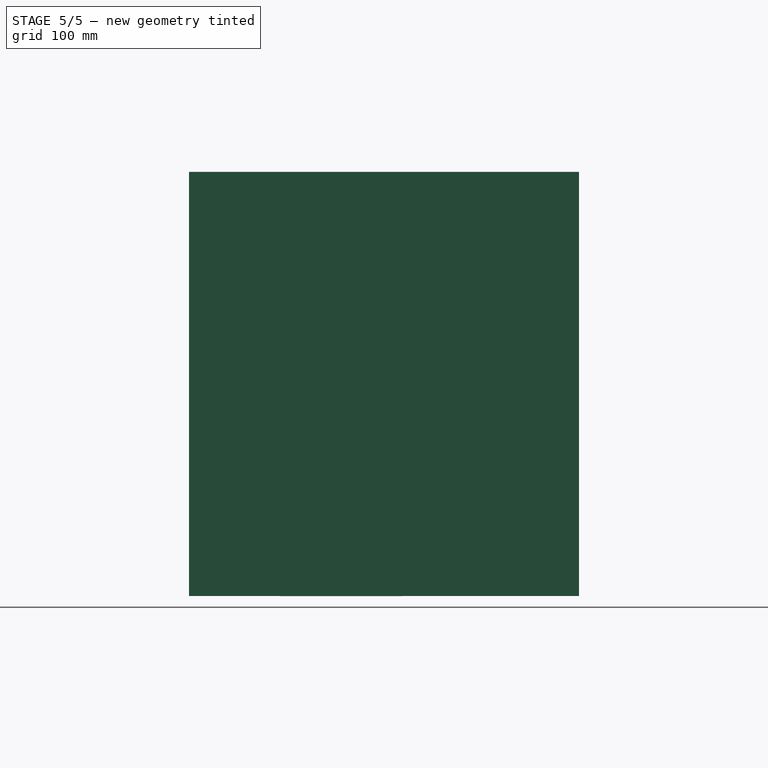
[diagram: stage 5 of 5 — right view after this stage's code; geometry added in this stage tinted green]
FEATURE [Part::Box] Box  label="Bounding Box for Reference"
  Height = 441.96
  Length = 449.58
  Width = 406.4
FEATURE [Sketcher::SketchObject] Sketch010
  ExternalGeometry = -> [Pad006]
  Placement = pos=(177.8,222.25,0) rot=(0.57735,0.57735,0.57735;4.18879rad)
  Support = -> Pad006 [Face2]
  sketch-geometry (4):
    g0: LineSegment StartX=41.248 StartY=92.671 StartZ=0 EndX=111.872 EndY=92.671 EndZ=0
    g1: LineSegment StartX=111.872 StartY=92.671 StartZ=0 EndX=111.872 EndY=-98667.6 EndZ=0
    g2: LineSegment StartX=111.872 StartY=-98667.6 StartZ=0 EndX=41.248 EndY=-98667.6 EndZ=0
    g3: LineSegment StartX=41.248 StartY=-98667.6 StartZ=0 EndX=41.248 EndY=92.671 EndZ=0
FEATURE [PartDesign::Pocket] Pocket002  label="Trim Fuel Tank Mounting Tabs"
  Length = 0
  Midplane = true
  Placement = pos=(177.8,0,0) rot=(0.57735,0.57735,0.57735;2.0944rad)
  Sketch = -> Sketch010
  Type = 3
  UpToFace = -> Pad006 [Face10]
FEATURE [PartDesign::Chamfer] Chamfer  label="Gas Tank Large Chamfer"
  Base = -> Pocket002 [Edge2]
  Placement = pos=(177.8,0,0) rot=(0.57735,0.57735,0.57735;2.0944rad)
  Size = 50
FEATURE [PartDesign::Fillet] Fillet001  label="Soften Edge with Fillet"
  Base = -> Chamfer [Edge18,Edge27]
  Placement = pos=(177.8,0,0) rot=(0.57735,0.57735,0.57735;2.0944rad)
  Radius = 30
FEATURE [PartDesign::Fillet] Fillet002  label="Gas Tank with Fillets"
  Base = -> Fillet001 [Edge25,Edge23,Edge38,Edge21,Edge19]
  Placement = pos=(177.8,0,0) rot=(0.57735,0.57735,0.57735;2.0944rad)
  Radius = 15
FEATURE [Part::MultiFuse] Fusion  label="Full Engine"
  Shapes = -> [Fillet004,Pad013,Pad012,Pad011,Fillet007,Fillet006,Fillet002]
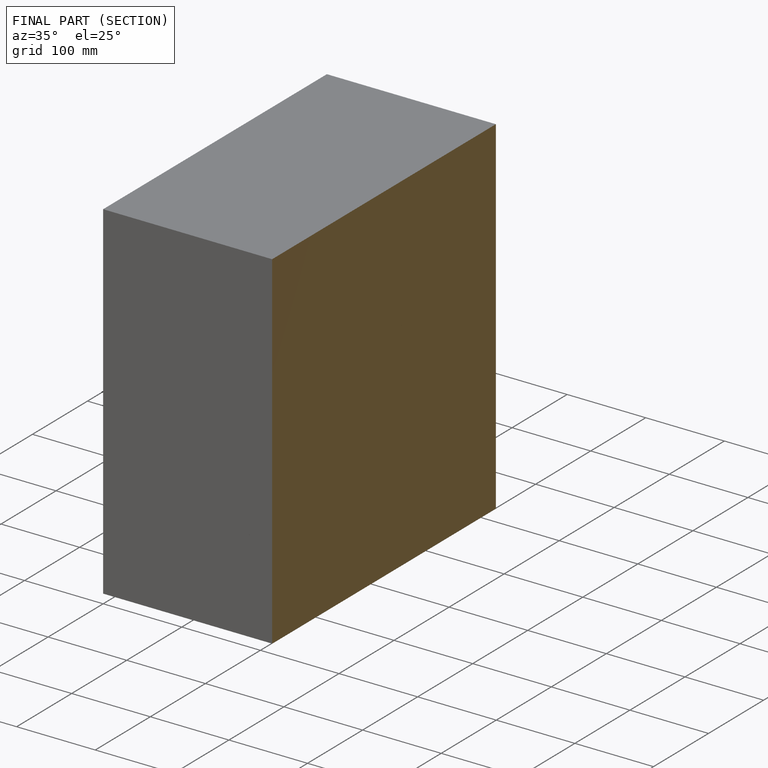
[diagram: finished part — half-section view (interior)]
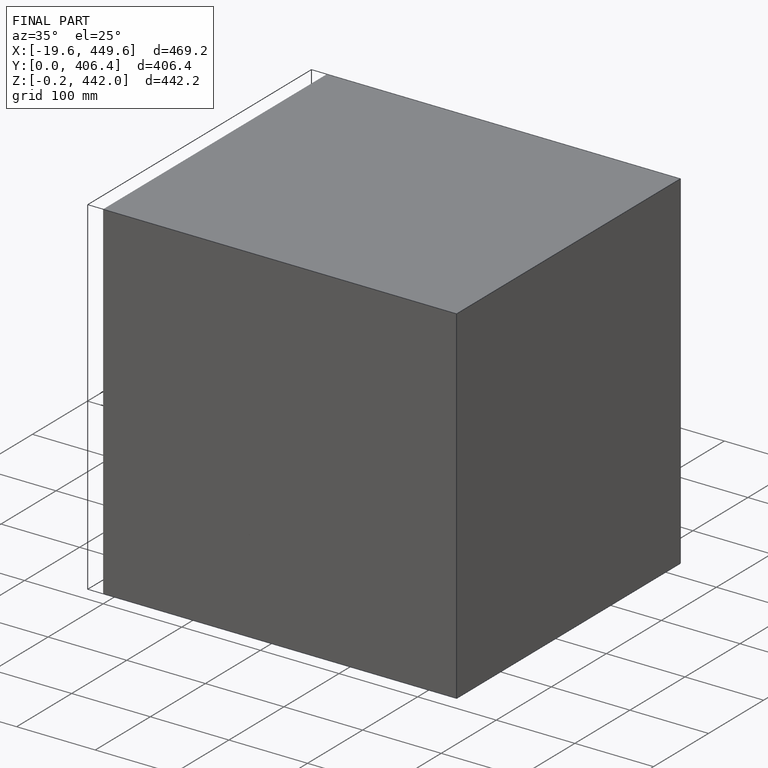
[diagram: finished part — iso view with bounding-box wireframe]
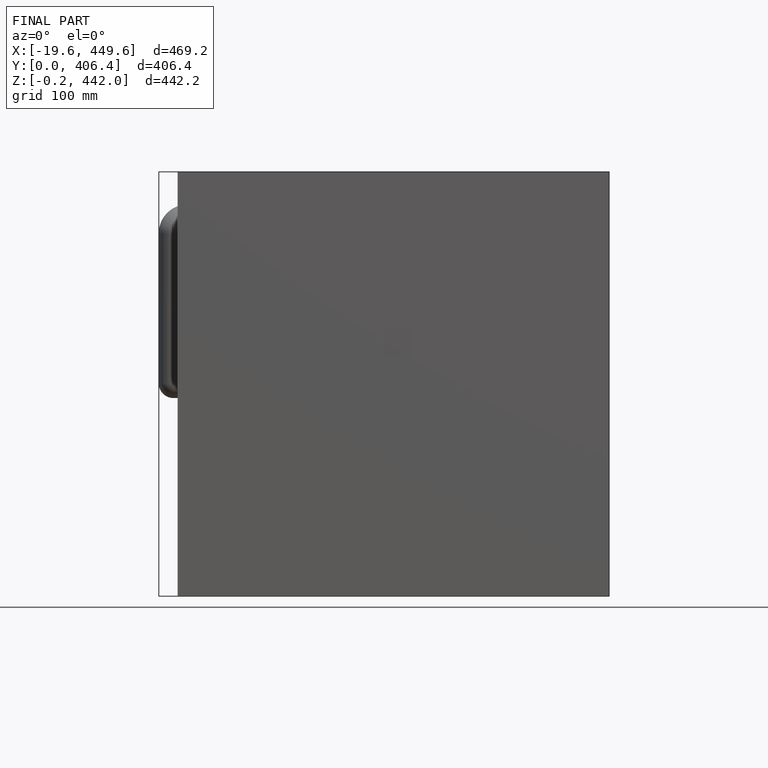
[diagram: finished part — front view with bounding-box wireframe]
